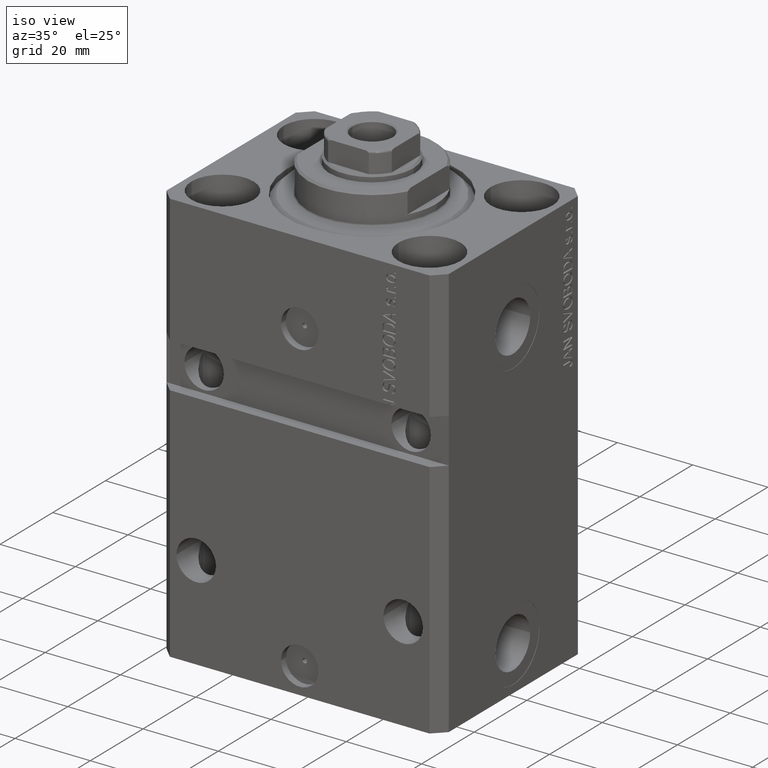
[diagram: clean part render]
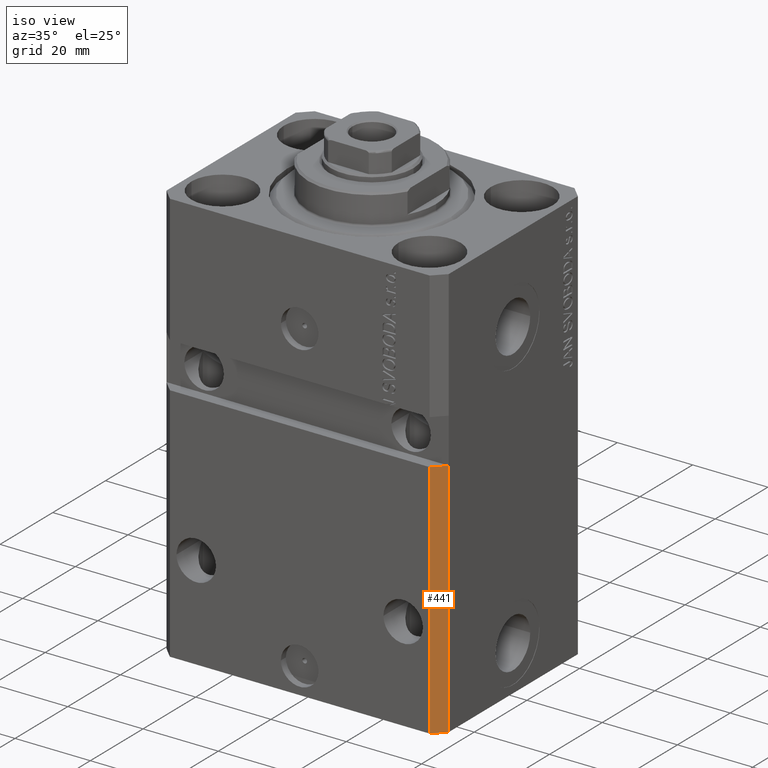
[diagram: same view with one face highlighted and labeled with its STEP entity id]
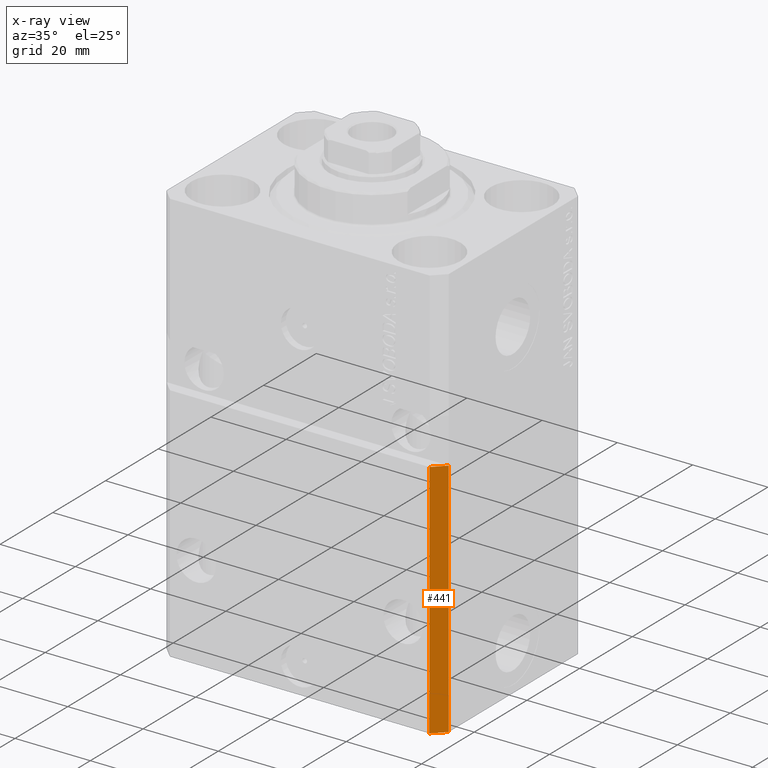
[diagram: x-ray of the same camera — body ghosted, the highlighted face saturated]
A machine part, iso view. The second image highlights one B-rep face of the part: STEP entity #441.
The next image is the same camera in x-ray: the body ghosted, the highlighted face saturated — about 0% of this face is hidden behind the body in this view.
In plain terms, the highlighted planar face has unit normal (0.7071, -0.7071, 0).
Its self-contained STEP definition (entity closure, byte-faithful):
#286 = VECTOR ( 'NONE', #33462, 1000.000000000000114 ) ;
#441 = ADVANCED_FACE ( 'NONE', ( #6090 ), #28130, .T. ) ;
#2539 = CARTESIAN_POINT ( 'NONE',  ( 37.49999999999999289, -24.49999999999999289, -46.00000000000000711 ) ) ;
#5174 = AXIS2_PLACEMENT_3D ( 'NONE', #43400, #20849, #35662 ) ;
#6090 = FACE_OUTER_BOUND ( 'NONE', #28522, .T. ) ;
#7543 = CARTESIAN_POINT ( 'NONE',  ( 34.49999999999999289, -27.49999999999999645, -110.0000000000000000 ) ) ;
#8794 = CARTESIAN_POINT ( 'NONE',  ( 37.49999999999999289, -24.50000000000000000, -110.0000000000000000 ) ) ;
#9304 = ORIENTED_EDGE ( 'NONE', *, *, #45451, .F. ) ;
#10923 = LINE ( 'NONE', #36143, #286 ) ;
#11673 = VERTEX_POINT ( 'NONE', #8794 ) ;
#12563 = VECTOR ( 'NONE', #25669, 1000.000000000000000 ) ;
#13688 = ORIENTED_EDGE ( 'NONE', *, *, #26711, .T. ) ;
#14112 = CARTESIAN_POINT ( 'NONE',  ( 34.49999999999999289, -27.49999999999999289, -46.00000000000000711 ) ) ;
#15082 = LINE ( 'NONE', #25261, #21425 ) ;
#16511 = CARTESIAN_POINT ( 'NONE',  ( 37.49999999999999289, -24.50000000000000000, -110.0000000000000000 ) ) ;
#19164 = VERTEX_POINT ( 'NONE', #14112 ) ;
#19431 = LINE ( 'NONE', #16511, #44580 ) ;
#20289 = ORIENTED_EDGE ( 'NONE', *, *, #36854, .T. ) ;
#20372 = DIRECTION ( 'NONE',  ( 0.000000000000000000, 0.000000000000000000, 1.000000000000000000 ) ) ;
#20730 = EDGE_CURVE ( 'NONE', #23899, #19164, #32492, .T. ) ;
#20849 = DIRECTION ( 'NONE',  ( 0.7071067811865475727, -0.7071067811865475727, 0.000000000000000000 ) ) ;
#21425 = VECTOR ( 'NONE', #43928, 1000.000000000000114 ) ;
#23899 = VERTEX_POINT ( 'NONE', #7543 ) ;
#25261 = CARTESIAN_POINT ( 'NONE',  ( 34.49999999999999289, -27.49999999999999289, -46.00000000000000000 ) ) ;
#25669 = DIRECTION ( 'NONE',  ( 0.000000000000000000, 0.000000000000000000, 1.000000000000000000 ) ) ;
#26711 = EDGE_CURVE ( 'NONE', #23899, #11673, #10923, .T. ) ;
#28130 = PLANE ( 'NONE',  #5174 ) ;
#28522 = EDGE_LOOP ( 'NONE', ( #9304, #37431, #13688, #20289 ) ) ;
#30340 = VERTEX_POINT ( 'NONE', #2539 ) ;
#32492 = LINE ( 'NONE', #43620, #12563 ) ;
#33462 = DIRECTION ( 'NONE',  ( 0.7071067811865474617, 0.7071067811865474617, 0.000000000000000000 ) ) ;
#35662 = DIRECTION ( 'NONE',  ( 0.7071067811865474617, 0.7071067811865474617, 0.000000000000000000 ) ) ;
#36143 = CARTESIAN_POINT ( 'NONE',  ( 34.49999999999999289, -27.49999999999999645, -110.0000000000000000 ) ) ;
#36854 = EDGE_CURVE ( 'NONE', #11673, #30340, #19431, .T. ) ;
#37431 = ORIENTED_EDGE ( 'NONE', *, *, #20730, .F. ) ;
#43400 = CARTESIAN_POINT ( 'NONE',  ( 34.49999999999999289, -27.49999999999999645, -110.0000000000000000 ) ) ;
#43620 = CARTESIAN_POINT ( 'NONE',  ( 34.49999999999999289, -27.49999999999999645, -110.0000000000000000 ) ) ;
#43928 = DIRECTION ( 'NONE',  ( 0.7071067811865474617, 0.7071067811865474617, -6.542051911182397555E-17 ) ) ;
#44580 = VECTOR ( 'NONE', #20372, 1000.000000000000000 ) ;
#45451 = EDGE_CURVE ( 'NONE', #19164, #30340, #15082, .T. ) ;